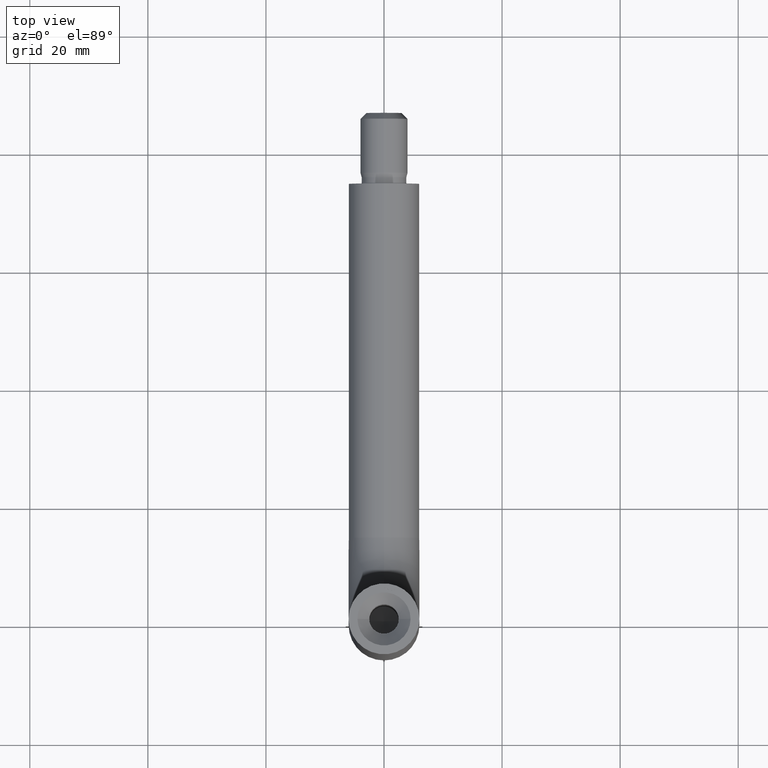
[diagram: clean part render]
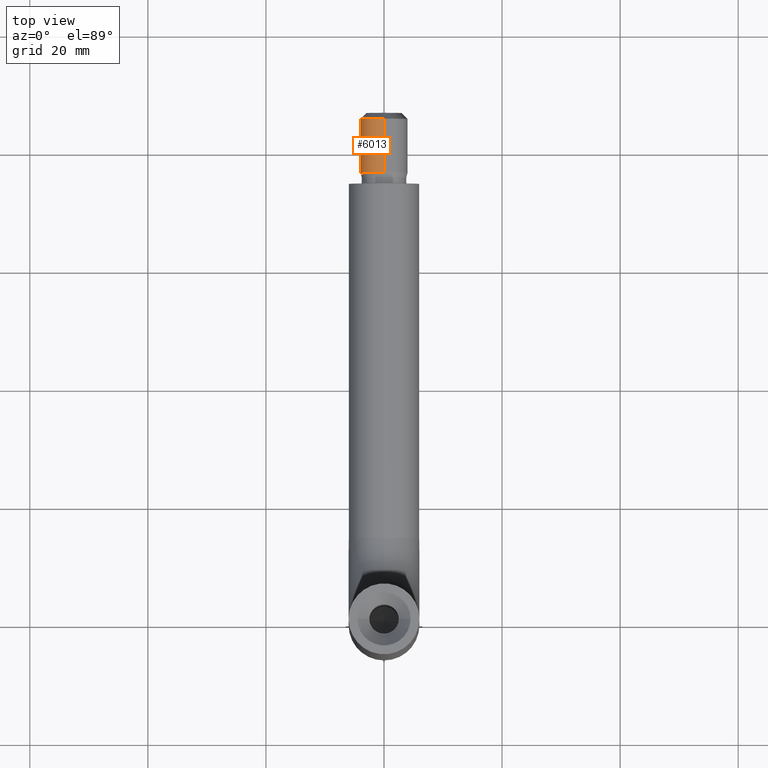
[diagram: same view with one face highlighted and labeled with its STEP entity id]
A machine part, top view. The second image highlights one B-rep face of the part: STEP entity #6013.
In plain terms, the highlighted cylindrical surface (edge-blend (fillet) strip) has radius 4 mm, axis along (-0, -1, -0).
Its self-contained STEP definition (entity closure, byte-faithful):
#50 = AXIS2_PLACEMENT_3D ( 'NONE', #589, #11755, #2752 ) ;
#138 = CARTESIAN_POINT ( 'NONE',  ( 4.898587196589417800E-016, 76.84557046143389400, -79.00000000000001400 ) ) ;
#589 = CARTESIAN_POINT ( 'NONE',  ( 0.0000000000000000000, 74.99999999999991500, -75.00000000000001400 ) ) ;
#764 = CIRCLE ( 'NONE', #8162, 4.000000000000017800 ) ;
#933 = CYLINDRICAL_SURFACE ( 'NONE', #50, 4.000000000000003600 ) ;
#1194 = AXIS2_PLACEMENT_3D ( 'NONE', #13468, #3306, #2375 ) ;
#1595 = CARTESIAN_POINT ( 'NONE',  ( 0.0000000000000000000, 76.84557046143389400, -71.00000000000001400 ) ) ;
#1729 = DIRECTION ( 'NONE',  ( -0.0000000000000000000, -1.000000000000000000, -0.0000000000000000000 ) ) ;
#2375 = DIRECTION ( 'NONE',  ( 0.0000000000000000000, 0.0000000000000000000, 1.000000000000000000 ) ) ;
#2581 = DIRECTION ( 'NONE',  ( -0.0000000000000000000, -1.000000000000000000, -0.0000000000000000000 ) ) ;
#2682 = LINE ( 'NONE', #12047, #10690 ) ;
#2752 = DIRECTION ( 'NONE',  ( 0.0000000000000000000, 0.0000000000000000000, -1.000000000000000000 ) ) ;
#2779 = DIRECTION ( 'NONE',  ( 0.0000000000000000000, 0.0000000000000000000, -1.000000000000000000 ) ) ;
#2916 = CIRCLE ( 'NONE', #1194, 4.000000000000003600 ) ;
#3306 = DIRECTION ( 'NONE',  ( -0.0000000000000000000, 1.000000000000000000, -0.0000000000000000000 ) ) ;
#4933 = EDGE_CURVE ( 'NONE', #7389, #13426, #764, .T. ) ;
#5242 = ORIENTED_EDGE ( 'NONE', *, *, #4933, .T. ) ;
#6013 = ADVANCED_FACE ( 'NONE', ( #6168 ), #933, .T. ) ;
#6168 = FACE_OUTER_BOUND ( 'NONE', #10625, .T. ) ;
#6346 = ORIENTED_EDGE ( 'NONE', *, *, #9013, .T. ) ;
#7138 = ORIENTED_EDGE ( 'NONE', *, *, #9401, .F. ) ;
#7389 = VERTEX_POINT ( 'NONE', #13464 ) ;
#7435 = LINE ( 'NONE', #14001, #13232 ) ;
#8162 = AXIS2_PLACEMENT_3D ( 'NONE', #11505, #2581, #2779 ) ;
#8970 = ORIENTED_EDGE ( 'NONE', *, *, #12696, .T. ) ;
#9013 = EDGE_CURVE ( 'NONE', #12904, #14513, #2916, .T. ) ;
#9401 = EDGE_CURVE ( 'NONE', #7389, #14513, #7435, .T. ) ;
#9593 = DIRECTION ( 'NONE',  ( -0.0000000000000000000, -1.000000000000000000, -0.0000000000000000000 ) ) ;
#10378 = CARTESIAN_POINT ( 'NONE',  ( 0.0000000000000000000, 85.99999999999991500, -79.00000000000002800 ) ) ;
#10625 = EDGE_LOOP ( 'NONE', ( #7138, #5242, #8970, #6346 ) ) ;
#10690 = VECTOR ( 'NONE', #9593, 1000.000000000000000 ) ;
#11505 = CARTESIAN_POINT ( 'NONE',  ( 0.0000000000000000000, 85.99999999999991500, -75.00000000000001400 ) ) ;
#11755 = DIRECTION ( 'NONE',  ( -0.0000000000000000000, -1.000000000000000000, -0.0000000000000000000 ) ) ;
#12047 = CARTESIAN_POINT ( 'NONE',  ( 0.0000000000000000000, 74.99999999999991500, -79.00000000000001400 ) ) ;
#12696 = EDGE_CURVE ( 'NONE', #13426, #12904, #2682, .T. ) ;
#12904 = VERTEX_POINT ( 'NONE', #138 ) ;
#13232 = VECTOR ( 'NONE', #1729, 1000.000000000000000 ) ;
#13426 = VERTEX_POINT ( 'NONE', #10378 ) ;
#13464 = CARTESIAN_POINT ( 'NONE',  ( 4.898587196589433500E-016, 85.99999999999991500, -71.00000000000000000 ) ) ;
#13468 = CARTESIAN_POINT ( 'NONE',  ( 0.0000000000000000000, 76.84557046143389400, -75.00000000000001400 ) ) ;
#14001 = CARTESIAN_POINT ( 'NONE',  ( 4.898587196589425600E-016, 74.99999999999991500, -71.00000000000001400 ) ) ;
#14513 = VERTEX_POINT ( 'NONE', #1595 ) ;